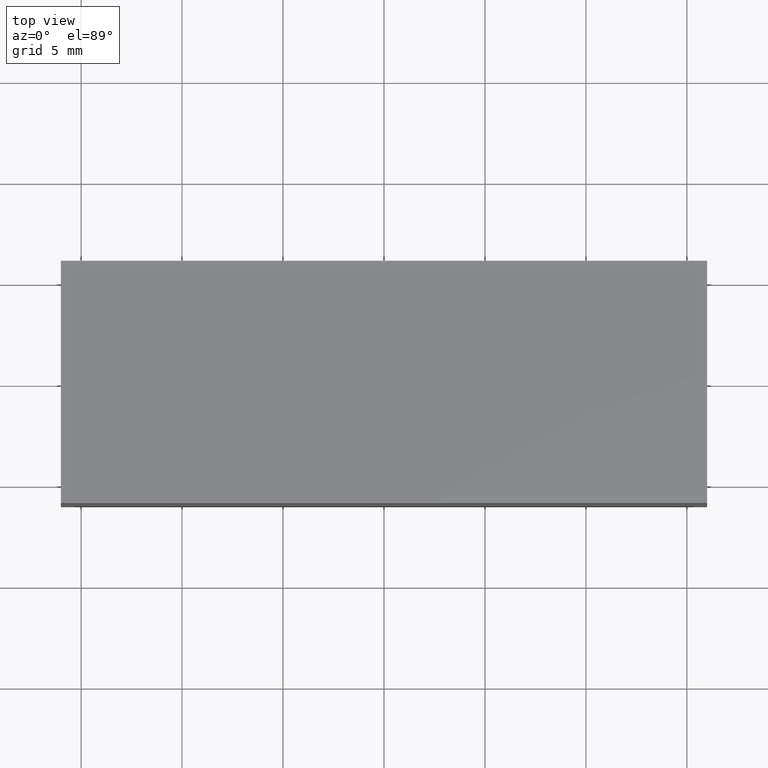
[diagram: clean part render]
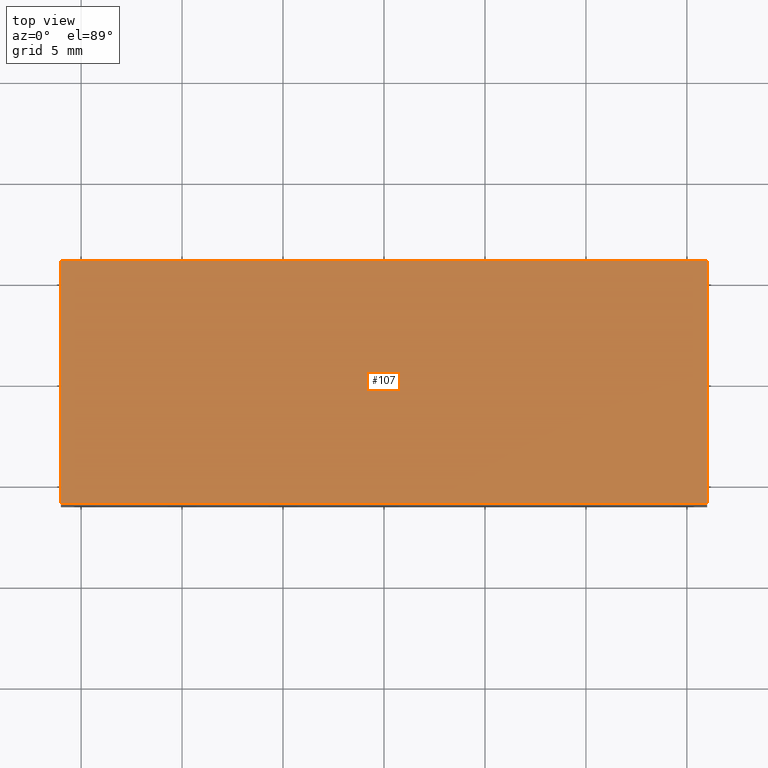
[diagram: same view with one face highlighted and labeled with its STEP entity id]
A machine part, top view. The second image highlights one B-rep face of the part: STEP entity #107.
In plain terms, the highlighted planar face has unit normal (0, 0, 1).
Its self-contained STEP definition (entity closure, byte-faithful):
#21=FACE_OUTER_BOUND('',#27,.T.);
#27=EDGE_LOOP('',(#92,#93,#94,#95));
#32=LINE('',#173,#44);
#35=LINE('',#178,#47);
#37=LINE('',#182,#49);
#39=LINE('',#185,#51);
#44=VECTOR('',#144,10.);
#47=VECTOR('',#149,10.);
#49=VECTOR('',#153,10.);
#51=VECTOR('',#157,10.);
#56=VERTEX_POINT('',#171);
#57=VERTEX_POINT('',#172);
#58=VERTEX_POINT('',#177);
#59=VERTEX_POINT('',#181);
#64=EDGE_CURVE('',#56,#57,#32,.T.);
#67=EDGE_CURVE('',#57,#58,#35,.T.);
#69=EDGE_CURVE('',#58,#59,#37,.T.);
#71=EDGE_CURVE('',#59,#56,#39,.T.);
#92=ORIENTED_EDGE('',*,*,#64,.F.);
#93=ORIENTED_EDGE('',*,*,#71,.F.);
#94=ORIENTED_EDGE('',*,*,#69,.F.);
#95=ORIENTED_EDGE('',*,*,#67,.F.);
#101=PLANE('',#133);
#107=ADVANCED_FACE('',(#21),#101,.T.);
#133=AXIS2_PLACEMENT_3D('',#186,#158,#159);
#144=DIRECTION('',(0.,1.,0.));
#149=DIRECTION('',(1.,2.77555756156289E-16,0.));
#153=DIRECTION('',(3.70074341541718E-16,-1.,0.));
#157=DIRECTION('',(-1.,0.,0.));
#158=DIRECTION('center_axis',(0.,0.,1.));
#159=DIRECTION('ref_axis',(1.,0.,0.));
#171=CARTESIAN_POINT('',(-16.,-6.,6.));
#172=CARTESIAN_POINT('',(-16.,6.,6.));
#173=CARTESIAN_POINT('',(-16.,6.,6.));
#177=CARTESIAN_POINT('',(16.,6.00000000000001,6.));
#178=CARTESIAN_POINT('',(16.,6.00000000000001,6.));
#181=CARTESIAN_POINT('',(16.,-6.,6.));
#182=CARTESIAN_POINT('',(16.,-6.,6.));
#185=CARTESIAN_POINT('',(-16.,-6.,6.));
#186=CARTESIAN_POINT('Origin',(2.77555756156289E-16,2.72050518017652E-15,
6.));